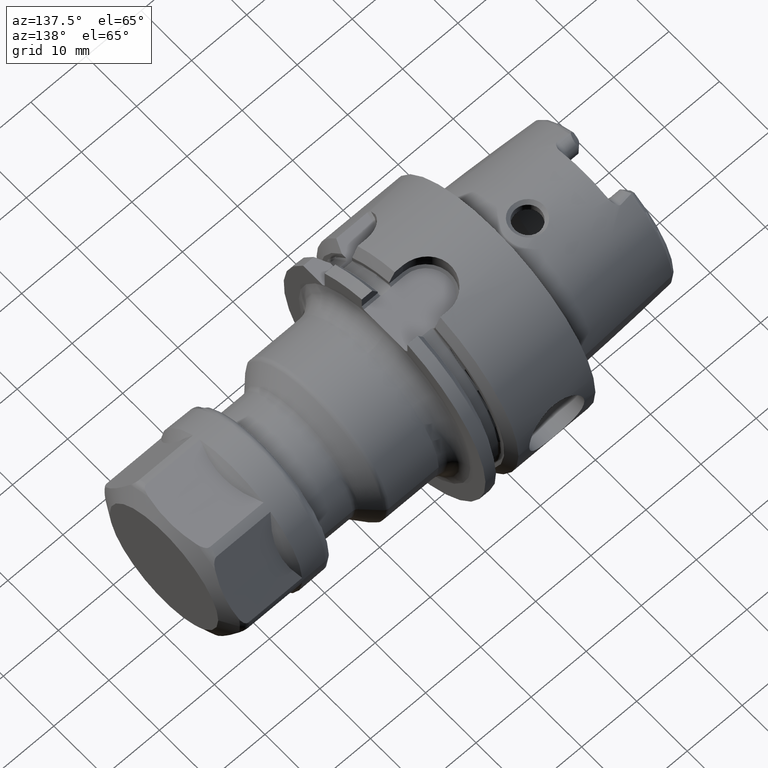
[diagram: clean part render]
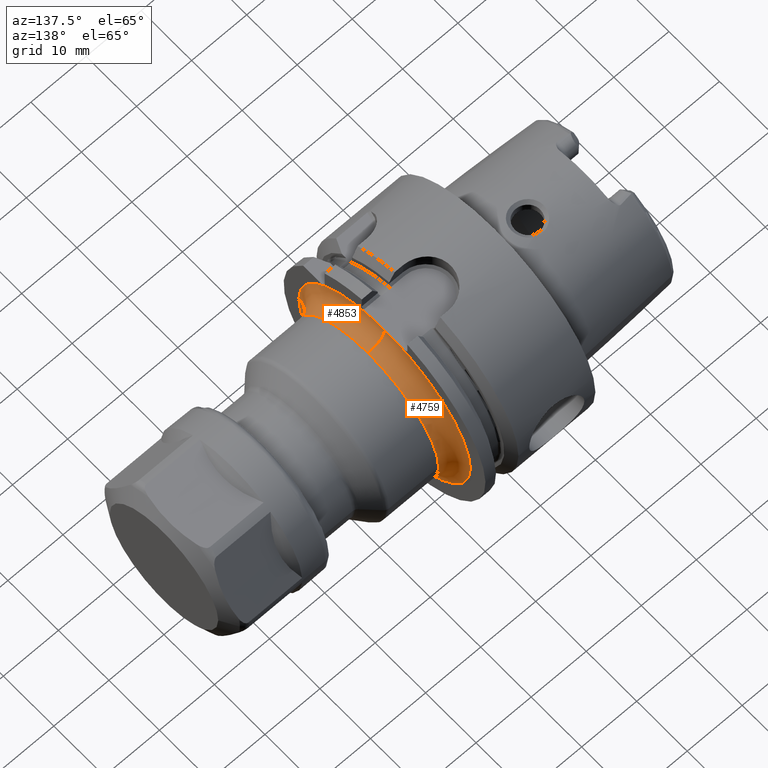
[diagram: same view with one multi-face feature highlighted, each face labeled with its STEP entity id]
A machine part, auxiliary view. The highlighted faces form ONE feature: a constant-radius fillet chain: 2 tangent blend faces with common blend radius 3 mm. The faces share edges in the B-rep.
Their STEP definitions:
[1] entity #4853 (Torus):
#1367=CARTESIAN_POINT('',(2.295E1,-1.7E1,1.770111834887E-13));
#1368=DIRECTION('',(0.E0,-1.041267766455E-14,-1.E0));
#1369=DIRECTION('',(-1.E0,0.E0,0.E0));
#1370=AXIS2_PLACEMENT_3D('',#1367,#1368,#1369);
#1427=CARTESIAN_POINT('',(1.995E1,0.E0,0.E0));
#1428=DIRECTION('',(1.E0,0.E0,0.E0));
#1429=DIRECTION('',(0.E0,-1.083930202861E-1,9.941081194484E-1));
#1430=AXIS2_PLACEMENT_3D('',#1427,#1428,#1429);
#1432=CARTESIAN_POINT('',(1.995166712910E1,-8.914292601848E-4,1.69E1));
#1433=CARTESIAN_POINT('',(1.995166676883E1,-2.056836936485E-1,1.69E1));
#1434=CARTESIAN_POINT('',(1.995140386672E1,-6.151341398242E-1,
1.689999953520E1));
#1435=CARTESIAN_POINT('',(1.995047578850E1,-1.228608697107E0,1.690000162680E1));
#1436=CARTESIAN_POINT('',(1.995E1,-1.637722160055E0,1.689999651400E1));
#1437=CARTESIAN_POINT('',(1.995E1,-1.841728507535E0,1.689999651400E1));
#1499=CARTESIAN_POINT('',(2.295E1,-8.967039882914E-4,1.699999997635E1));
#1500=DIRECTION('',(0.E0,-9.999999986089E-1,-5.274729342891E-5));
#1501=DIRECTION('',(-9.994442902990E-1,1.758242700930E-6,-3.333332545022E-2));
#1502=AXIS2_PLACEMENT_3D('',#1499,#1500,#1501);
#1509=CARTESIAN_POINT('',(2.295E1,0.E0,0.E0));
#1510=DIRECTION('',(1.E0,0.E0,0.E0));
#1511=DIRECTION('',(0.E0,-4.350135766906E-5,9.999999990538E-1));
#1512=AXIS2_PLACEMENT_3D('',#1509,#1510,#1511);
#3259=CARTESIAN_POINT('',(1.995166712910E1,-8.914292601886E-4,1.69E1));
#3260=CARTESIAN_POINT('',(2.295E1,-7.384621080047E-4,1.399999998052E1));
#3261=VERTEX_POINT('',#3259);
#3262=VERTEX_POINT('',#3260);
#3269=CARTESIAN_POINT('',(1.995E1,-1.7E1,0.E0));
#3271=VERTEX_POINT('',#3269);
#3273=CARTESIAN_POINT('',(1.995E1,-1.842681344864E0,1.689983803062E1));
#3274=VERTEX_POINT('',#3273);
#3275=CARTESIAN_POINT('',(2.295E1,-1.4E1,0.E0));
#3276=VERTEX_POINT('',#3275);
#4840=CARTESIAN_POINT('',(2.295E1,0.E0,0.E0));
#4841=DIRECTION('',(1.E0,0.E0,0.E0));
#4842=DIRECTION('',(0.E0,1.485959642860E-3,-9.999988959614E-1));
#4843=AXIS2_PLACEMENT_3D('',#4840,#4841,#4842);
#4844=TOROIDAL_SURFACE('',#4843,1.7E1,3.E0);
#4845=ORIENTED_EDGE('',*,*,#4751,.T.);
#4847=ORIENTED_EDGE('',*,*,#4846,.T.);
#4848=ORIENTED_EDGE('',*,*,#4745,.F.);
#4849=ORIENTED_EDGE('',*,*,#4804,.F.);
#4850=ORIENTED_EDGE('',*,*,#4814,.F.);
#4851=EDGE_LOOP('',(#4845,#4847,#4848,#4849,#4850));
#4852=FACE_OUTER_BOUND('',#4851,.F.);
#4853=ADVANCED_FACE('',(#4852),#4844,.F.);
#1371=CIRCLE('',#1370,3.E0);
#1431=CIRCLE('',#1430,1.7E1);
#1438=B_SPLINE_CURVE_WITH_KNOTS('',3,(#1432,#1433,#1434,#1435,#1436,#1437),
.UNSPECIFIED.,.F.,.F.,(4,1,1,4),(0.E0,3.333333333333E-1,6.666666666667E-1,1.E0),
.UNSPECIFIED.);
#1503=CIRCLE('',#1502,3.E0);
#1513=CIRCLE('',#1512,1.4E1);
#4745=EDGE_CURVE('',#3271,#3276,#1371,.T.);
#4751=EDGE_CURVE('',#3261,#3262,#1503,.T.);
#4804=EDGE_CURVE('',#3274,#3271,#1431,.T.);
#4814=EDGE_CURVE('',#3261,#3274,#1438,.T.);
#4846=EDGE_CURVE('',#3262,#3276,#1513,.T.);
[2] entity #4759 (Torus):
#1360=CARTESIAN_POINT('',(1.995E1,1.841693244935E0,-1.689999665276E1));
#1361=CARTESIAN_POINT('',(1.995E1,1.432830407071E0,-1.689999665276E1));
#1362=CARTESIAN_POINT('',(1.995175455882E1,6.141481499076E-1,
-1.690000124914E1));
#1363=CARTESIAN_POINT('',(1.995175455820E1,-6.142700922421E-1,
-1.690000064887E1));
#1364=CARTESIAN_POINT('',(1.995E1,-1.432465534428E0,-1.689999765320E1));
#1365=CARTESIAN_POINT('',(1.995E1,-1.841328252997E0,-1.689999765320E1));
#1367=CARTESIAN_POINT('',(2.295E1,-1.7E1,1.770111834887E-13));
#1368=DIRECTION('',(0.E0,-1.041267766455E-14,-1.E0));
#1369=DIRECTION('',(-1.E0,0.E0,0.E0));
#1370=AXIS2_PLACEMENT_3D('',#1367,#1368,#1369);
#1372=CARTESIAN_POINT('',(2.295E1,0.E0,0.E0));
#1373=DIRECTION('',(1.E0,0.E0,0.E0));
#1374=DIRECTION('',(0.E0,-1.E0,0.E0));
#1375=AXIS2_PLACEMENT_3D('',#1372,#1373,#1374);
#1377=CARTESIAN_POINT('',(1.995E1,0.E0,0.E0));
#1378=DIRECTION('',(-1.E0,0.E0,0.E0));
#1379=DIRECTION('',(0.E0,1.083240305863E-1,9.941156393486E-1));
#1380=AXIS2_PLACEMENT_3D('',#1377,#1378,#1379);
#1398=CARTESIAN_POINT('',(1.995E1,0.E0,0.E0));
#1399=DIRECTION('',(1.E0,0.E0,0.E0));
#1400=DIRECTION('',(0.E0,-1.E0,0.E0));
#1401=AXIS2_PLACEMENT_3D('',#1398,#1399,#1400);
#1492=CARTESIAN_POINT('',(1.995E1,1.841323183784E0,1.689999757465E1));
#1493=CARTESIAN_POINT('',(1.995E1,1.637091740996E0,1.689999757465E1));
#1494=CARTESIAN_POINT('',(1.995047679083E1,1.228141000821E0,1.690000113183E1));
#1495=CARTESIAN_POINT('',(1.995140551556E1,6.138664249108E-1,1.689999967662E1));
#1496=CARTESIAN_POINT('',(1.995166748971E1,2.040883612385E-1,1.69E1));
#1497=CARTESIAN_POINT('',(1.995166712910E1,-8.914292601848E-4,1.69E1));
#1499=CARTESIAN_POINT('',(2.295E1,-8.967039882914E-4,1.699999997635E1));
#1500=DIRECTION('',(0.E0,-9.999999986089E-1,-5.274729342891E-5));
#1501=DIRECTION('',(-9.994442902990E-1,1.758242700930E-6,-3.333332545022E-2));
#1502=AXIS2_PLACEMENT_3D('',#1499,#1500,#1501);
#1514=CARTESIAN_POINT('',(2.295E1,0.E0,0.E0));
#1515=DIRECTION('',(1.E0,0.E0,0.E0));
#1516=DIRECTION('',(0.E0,1.E0,0.E0));
#1517=AXIS2_PLACEMENT_3D('',#1514,#1515,#1516);
#3259=CARTESIAN_POINT('',(1.995166712910E1,-8.914292601886E-4,1.69E1));
#3260=CARTESIAN_POINT('',(2.295E1,-7.384621080047E-4,1.399999998052E1));
#3261=VERTEX_POINT('',#3259);
#3262=VERTEX_POINT('',#3260);
#3263=CARTESIAN_POINT('',(2.295E1,1.4E1,0.E0));
#3264=VERTEX_POINT('',#3263);
#3269=CARTESIAN_POINT('',(1.995E1,-1.7E1,0.E0));
#3270=CARTESIAN_POINT('',(1.995E1,-1.841525686812E0,-1.689996399833E1));
#3271=VERTEX_POINT('',#3269);
#3272=VERTEX_POINT('',#3270);
#3275=CARTESIAN_POINT('',(2.295E1,-1.4E1,0.E0));
#3276=VERTEX_POINT('',#3275);
#3277=VERTEX_POINT('',#1492);
#3278=CARTESIAN_POINT('',(1.995E1,1.841693244935E0,-1.689999665276E1));
#3279=VERTEX_POINT('',#3278);
#4737=CARTESIAN_POINT('',(2.295E1,0.E0,0.E0));
#4738=DIRECTION('',(1.E0,0.E0,0.E0));
#4739=DIRECTION('',(0.E0,9.999849205750E-1,-5.491686681722E-3));
#4740=AXIS2_PLACEMENT_3D('',#4737,#4738,#4739);
#4741=TOROIDAL_SURFACE('',#4740,1.7E1,3.E0);
#4742=ORIENTED_EDGE('',*,*,#4700,.T.);
#4744=ORIENTED_EDGE('',*,*,#4743,.F.);
#4746=ORIENTED_EDGE('',*,*,#4745,.T.);
#4748=ORIENTED_EDGE('',*,*,#4747,.T.);
#4750=ORIENTED_EDGE('',*,*,#4749,.T.);
#4752=ORIENTED_EDGE('',*,*,#4751,.F.);
#4754=ORIENTED_EDGE('',*,*,#4753,.F.);
#4756=ORIENTED_EDGE('',*,*,#4755,.T.);
#4757=EDGE_LOOP('',(#4742,#4744,#4746,#4748,#4750,#4752,#4754,#4756));
#4758=FACE_OUTER_BOUND('',#4757,.F.);
#4759=ADVANCED_FACE('',(#4758),#4741,.F.);
#1366=B_SPLINE_CURVE_WITH_KNOTS('',3,(#1360,#1361,#1362,#1363,#1364,#1365),
.UNSPECIFIED.,.F.,.F.,(4,1,1,4),(0.E0,3.333333333333E-1,6.666666666667E-1,1.E0),
.UNSPECIFIED.);
#1371=CIRCLE('',#1370,3.E0);
#1376=CIRCLE('',#1375,1.4E1);
#1381=CIRCLE('',#1380,1.7E1);
#1402=CIRCLE('',#1401,1.7E1);
#1498=B_SPLINE_CURVE_WITH_KNOTS('',3,(#1492,#1493,#1494,#1495,#1496,#1497),
.UNSPECIFIED.,.F.,.F.,(4,1,1,4),(0.E0,3.333333333333E-1,6.666666666667E-1,1.E0),
.UNSPECIFIED.);
#1503=CIRCLE('',#1502,3.E0);
#1518=CIRCLE('',#1517,1.4E1);
#4700=EDGE_CURVE('',#3279,#3272,#1366,.T.);
#4743=EDGE_CURVE('',#3271,#3272,#1402,.T.);
#4745=EDGE_CURVE('',#3271,#3276,#1371,.T.);
#4747=EDGE_CURVE('',#3276,#3264,#1376,.T.);
#4749=EDGE_CURVE('',#3264,#3262,#1518,.T.);
#4751=EDGE_CURVE('',#3261,#3262,#1503,.T.);
#4753=EDGE_CURVE('',#3277,#3261,#1498,.T.);
#4755=EDGE_CURVE('',#3277,#3279,#1381,.T.);